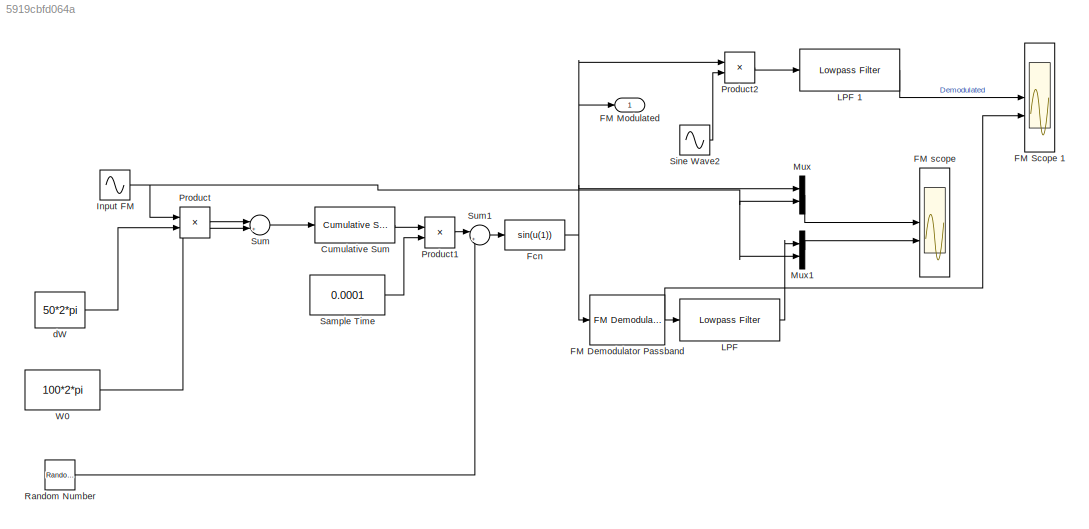
MODEL slx_5919cbfd064a
KIND model
CONFIG AbsTol = auto
CONFIG EnableMultiTasking = off
CONFIG FixedStep = 0.0001
CONFIG MaxStep = auto
CONFIG MinStep = auto
CONFIG RelTol = 1e-3
CONFIG SampleTimeConstraint = Unconstrained
CONFIG SolverName = FixedStepDiscrete
CONFIG StartTime = 0.0
CONFIG StopTime = 1
WORKSPACE source: external: MATLAB File  (data not in archive)
BLOCK [Reference] Cumulative Sum  REF=dspmathops/Cumulative
Sum
  SourceBlock = dspmathops/Cumulative\nSum
  SourceType = Cumulative Sum
  UserDataPersistent = on
BLOCK [Reference] FM Demodulator Passband  REF=commanapbnd3/FM
Demodulator
Passband
  SourceBlock = commanapbnd3/FM\nDemodulator\nPassband
  SourceType = FM Demodulator Passband
BLOCK [Outport] FM Modulated
BLOCK [Scope] FM Scope 1
  Floating = off
  NumInputPorts = 2
  ScopeSpecificationString = Simulink.scopes.TimeScopeBlockCfg('CurrentConfiguration', extmgr.ConfigurationSet(extmgr.Configuration('Core','General UI',true,'FigureColor',[1 1 1]),extmgr.Configuration('Core','Source UI',true),extmgr.Configuration('Sources','WiredSimulink',true,'DataLoggingVariableName','ScopeData1'),extmgr.Configuration('Visuals','Time Domain',true,'SerializedDisplays',{struct('MinYLimReal','-0.57937','MaxYLi...<+2122ch>
BLOCK [Scope] FM scope
  Floating = off
  NumInputPorts = 2
  ScopeSpecificationString = Simulink.scopes.TimeScopeBlockCfg('CurrentConfiguration', extmgr.ConfigurationSet(extmgr.Configuration('Core','General UI',true,'FigureColor',[1 1 1]),extmgr.Configuration('Core','Source UI',true),extmgr.Configuration('Sources','WiredSimulink',true),extmgr.Configuration('Visuals','Time Domain',true,'SerializedDisplays',{struct('MinYLimReal','-1.25','MaxYLimReal','1.25','YLabelReal','','MinYLimMag'...<+2053ch>
BLOCK [Fcn] Fcn
  Expr = sin(u(1))
BLOCK [Sin] Input FM
  Frequency = 2*2*pi
  SampleTime = 0.0001
BLOCK [Reference] LPF  REF=dspfdesign/Lowpass Filter
  SourceBlock = dspfdesign/Lowpass Filter
  SourceType = dsp.simulink.LowpassFilter
BLOCK [Reference] LPF 1  REF=dspfdesign/Lowpass Filter
  SourceBlock = dspfdesign/Lowpass Filter
  SourceType = dsp.simulink.LowpassFilter
BLOCK [Mux] Mux
  DisplayOption = bar
  Inputs = 2
BLOCK [Mux] Mux1
  DisplayOption = bar
  Inputs = 2
BLOCK [Product] Product
BLOCK [Product] Product1
BLOCK [Product] Product2
BLOCK [RandomNumber] Random Number
  SampleTime = 0.1
  Variance = variance
BLOCK [Constant] Sample Time
  Value = 0.0001
BLOCK [Sin] Sine Wave2
  Frequency = 100*2*pi
  SampleTime = 0.0001
BLOCK [Sum] Sum
  Inputs = |++
BLOCK [Sum] Sum1
  Inputs = |++
BLOCK [Constant] W0
  Value = 100*2*pi
BLOCK [Constant] dW
  Value = 50*2*pi
LINE Cumulative Sum:1 -> Product1:1
NET FM Demodulator Passband:1 -> FM Scope 1:2, LPF:1
NET Fcn:1 -> FM Demodulator Passband:1, FM Modulated:1, Mux:1, Product2:1
NET Input FM:1 -> Mux1:2, Mux:2, Product:1
LINE LPF 1:1 -> FM Scope 1:1
LINE LPF:1 -> Mux1:1
LINE Mux1:1 -> FM scope:2
LINE Mux:1 -> FM scope:1
LINE Product1:1 -> Sum1:1
LINE Product2:1 -> LPF 1:1
LINE Product:1 -> Sum:1
LINE Random Number:1 -> Sum1:2
LINE Sample Time:1 -> Product1:2
LINE Sine Wave2:1 -> Product2:2
LINE Sum1:1 -> Fcn:1
LINE Sum:1 -> Cumulative Sum:1
LINE W0:1 -> Sum:2
LINE dW:1 -> Product:2
note: NET lines group one-source signal fan-out (src -> all destinations, sorted); 1:1 wires keep LINE
